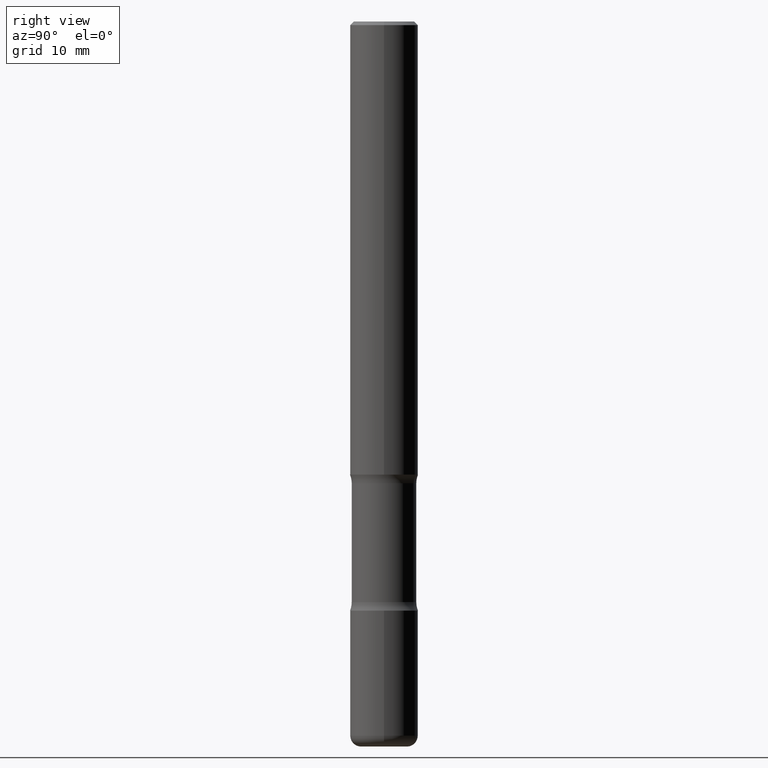
[diagram: clean part render]
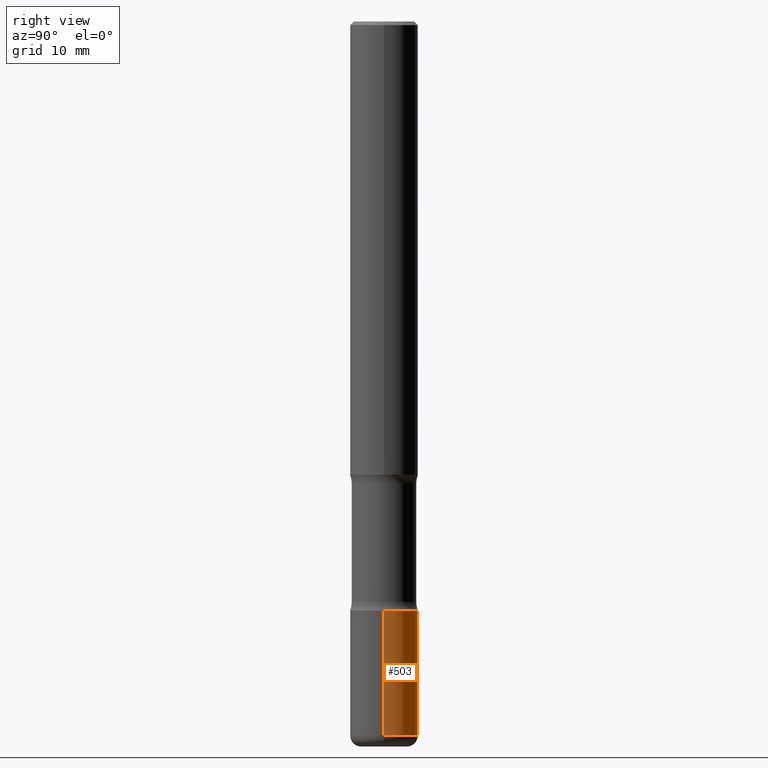
[diagram: same view with one face highlighted and labeled with its STEP entity id]
A machine part, right view. The second image highlights one B-rep face of the part: STEP entity #503.
In plain terms, the highlighted cylindrical surface (edge-blend (fillet) strip) has radius 4.7625 mm, axis along (-0, 0, 1).
Its self-contained STEP definition (entity closure, byte-faithful):
#19 = CARTESIAN_POINT ( 'NONE',  ( -0.1875000000000000833, -1.121960778359092137E-14, -3.250000000000000444 ) ) ;
#21 = LINE ( 'NONE', #207, #400 ) ;
#36 = FACE_OUTER_BOUND ( 'NONE', #100, .T. ) ;
#37 = CARTESIAN_POINT ( 'NONE',  ( 9.635147096369438236E-29, -1.375643647504199401E-14, -3.939999999999999947 ) ) ;
#73 = CARTESIAN_POINT ( 'NONE',  ( 7.947773620101696182E-29, -1.134731435124022600E-14, -3.250000000000000444 ) ) ;
#81 = AXIS2_PLACEMENT_3D ( 'NONE', #555, #466, #181 ) ;
#100 = EDGE_LOOP ( 'NONE', ( #479, #542, #523, #138 ) ) ;
#111 = LINE ( 'NONE', #287, #507 ) ;
#125 = CARTESIAN_POINT ( 'NONE',  ( 0.1875000000000000833, -1.265661985330640259E-14, -3.250000000000000444 ) ) ;
#138 = ORIENTED_EDGE ( 'NONE', *, *, #465, .F. ) ;
#153 = AXIS2_PLACEMENT_3D ( 'NONE', #37, #224, #506 ) ;
#159 = DIRECTION ( 'NONE',  ( -2.445468806185136597E-29, 3.491481338843145583E-15, 1.000000000000000000 ) ) ;
#181 = DIRECTION ( 'NONE',  ( 1.000000000000000000, -6.982962677686266711E-15, 4.876176775795935793E-29 ) ) ;
#187 = VERTEX_POINT ( 'NONE', #535 ) ;
#201 = VERTEX_POINT ( 'NONE', #493 ) ;
#207 = CARTESIAN_POINT ( 'NONE',  ( -0.1875000000000001110, 1.332267629550188637E-15, -9.223003294227953596E-30 ) ) ;
#224 = DIRECTION ( 'NONE',  ( -2.445468806185136597E-29, 3.491481338843145583E-15, 1.000000000000000000 ) ) ;
#246 = DIRECTION ( 'NONE',  ( -2.445468806185136877E-29, 3.491481338843145188E-15, 1.000000000000000000 ) ) ;
#267 = VERTEX_POINT ( 'NONE', #19 ) ;
#287 = CARTESIAN_POINT ( 'NONE',  ( 0.1875000000000001110, -1.309305502066175797E-15, 9.142831454617385217E-30 ) ) ;
#327 = CIRCLE ( 'NONE', #471, 0.1875000000000000833 ) ;
#346 = CIRCLE ( 'NONE', #153, 0.1875000000000001388 ) ;
#400 = VECTOR ( 'NONE', #494, 39.37007874015748143 ) ;
#416 = DIRECTION ( 'NONE',  ( 1.000000000000000000, -6.982962677686269866E-15, 0.000000000000000000 ) ) ;
#423 = EDGE_CURVE ( 'NONE', #437, #267, #327, .T. ) ;
#437 = VERTEX_POINT ( 'NONE', #125 ) ;
#465 = EDGE_CURVE ( 'NONE', #187, #437, #111, .T. ) ;
#466 = DIRECTION ( 'NONE',  ( -2.445468806185136597E-29, 3.491481338843145583E-15, 1.000000000000000000 ) ) ;
#468 = EDGE_CURVE ( 'NONE', #201, #267, #21, .T. ) ;
#471 = AXIS2_PLACEMENT_3D ( 'NONE', #73, #159, #416 ) ;
#479 = ORIENTED_EDGE ( 'NONE', *, *, #554, .T. ) ;
#493 = CARTESIAN_POINT ( 'NONE',  ( -0.1875000000000001110, -1.242416884549180617E-14, -3.939999999999999947 ) ) ;
#494 = DIRECTION ( 'NONE',  ( -2.445468806185136877E-29, 3.491481338843145188E-15, 1.000000000000000000 ) ) ;
#503 = ADVANCED_FACE ( 'NONE', ( #36 ), #549, .T. ) ;
#506 = DIRECTION ( 'NONE',  ( 1.000000000000000000, -6.982962677686267499E-15, 0.000000000000000000 ) ) ;
#507 = VECTOR ( 'NONE', #246, 39.37007874015748143 ) ;
#523 = ORIENTED_EDGE ( 'NONE', *, *, #423, .F. ) ;
#535 = CARTESIAN_POINT ( 'NONE',  ( 0.1875000000000001110, -1.506574197710817060E-14, -3.939999999999999947 ) ) ;
#542 = ORIENTED_EDGE ( 'NONE', *, *, #468, .T. ) ;
#549 = CYLINDRICAL_SURFACE ( 'NONE', #81, 0.1875000000000001110 ) ;
#554 = EDGE_CURVE ( 'NONE', #187, #201, #346, .T. ) ;
#555 = CARTESIAN_POINT ( 'NONE',  ( 0.000000000000000000, 0.000000000000000000, 0.000000000000000000 ) ) ;